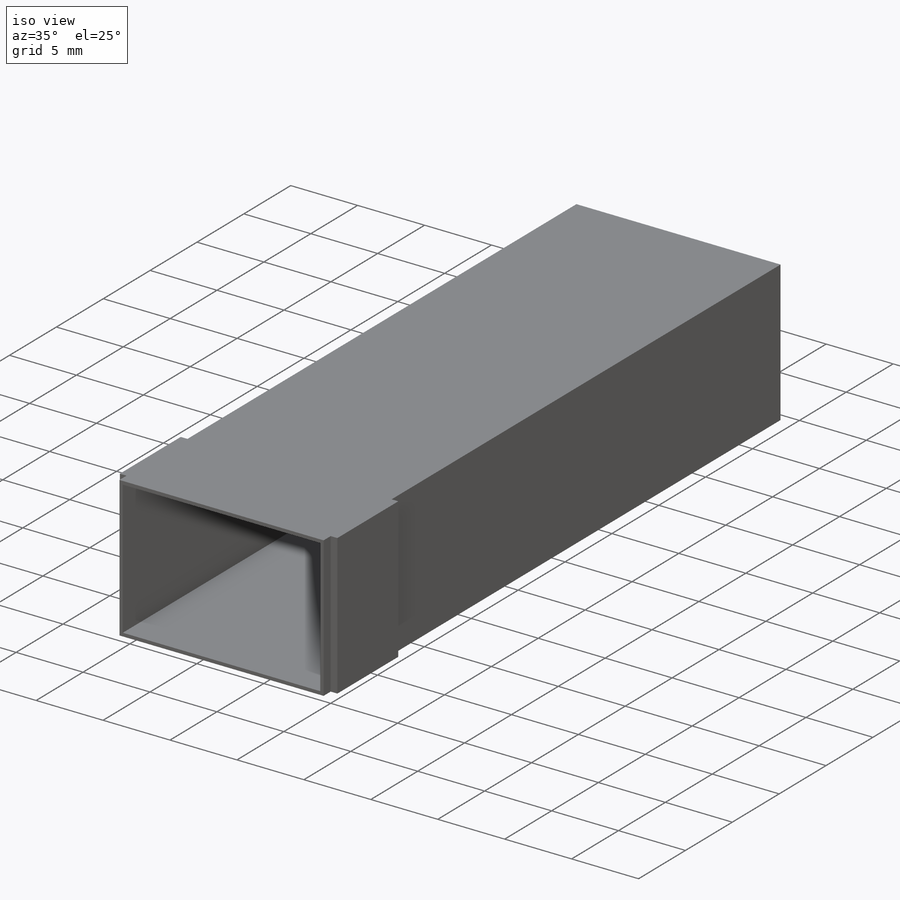
[diagram: iso view]
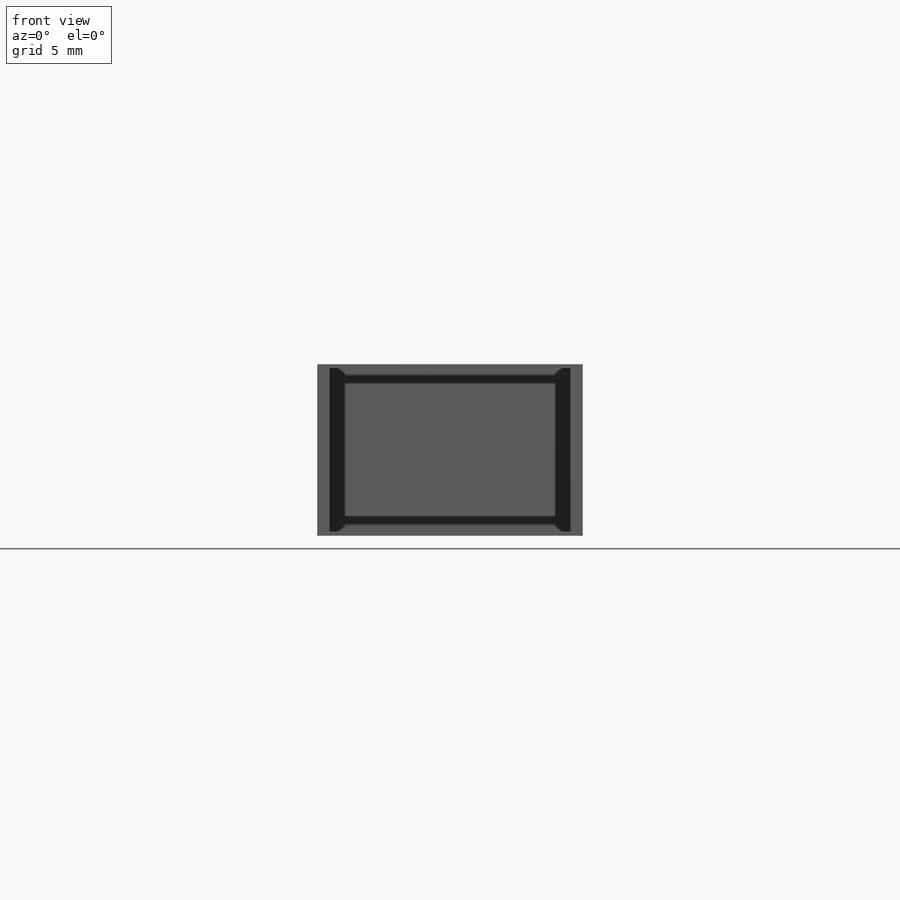
[diagram: front view]
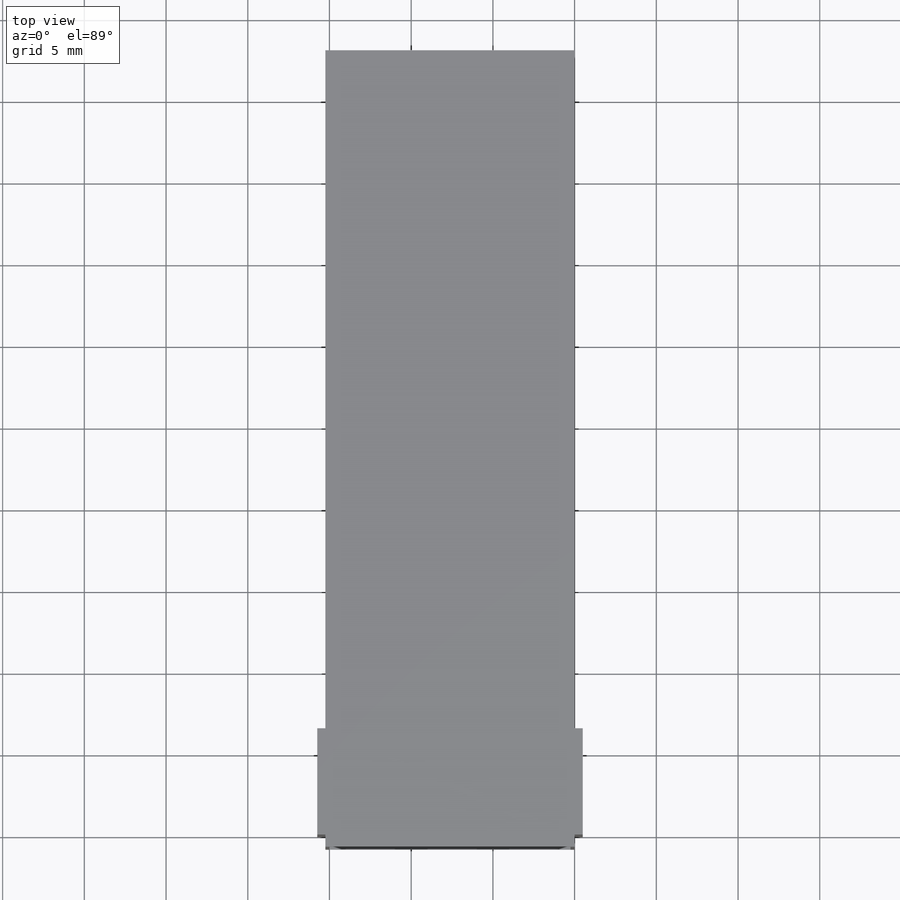
[diagram: top view]
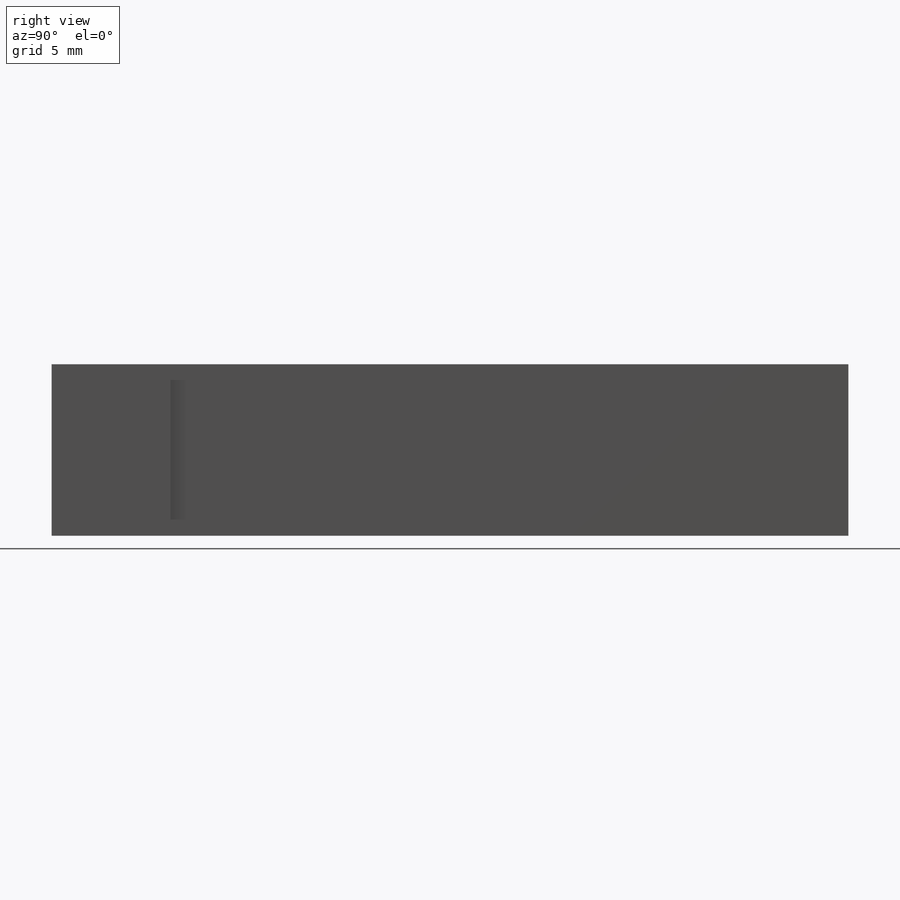
[diagram: right view]
SOLIDWORKS PART (.sldprt)
format: sldprt  version: not decoded by parser v0  size: 183,296 bytes
history: native  units: mm
features: sketch x3, extrude x2, material x1, shell x1, plane x1, mirror x1 (+13 scaffold rows collapsed)
feature tree (22):
  scaffold x13  (default folders/planes/origin — collapsed)
  material  "Material <not specified>"
  sketch  "Sketch1"  dims[c1.D1=~89.231366mm c1.D2=~42.899695mm c2.D1=48.75mm]
  extrude  "Boss-Extrude1"  Depth=10.5mm
  shell  "Shell1"  Thickness=0.25mm
  sketch  "Sketch2"  dims[c1.D1=~7.837276mm c1.D2=~3.042996mm c2.D1=5.8mm c3.D1=2.0 c3.D2=2.0]
  plane  "Plane1"
  sketch  "Sketch3"  dims[D1=10.5mm D2=~7.477583mm]
  extrude  "Boss-Extrude2"  Depth=0.5mm
  mirror  "Mirror1"
decode coverage: 6 of 7 modeling features carry decoded parameters
note: ~ marks probable driven/reference dimensions
note: suppression state not decoded; provenance and decode notes live in map.json
